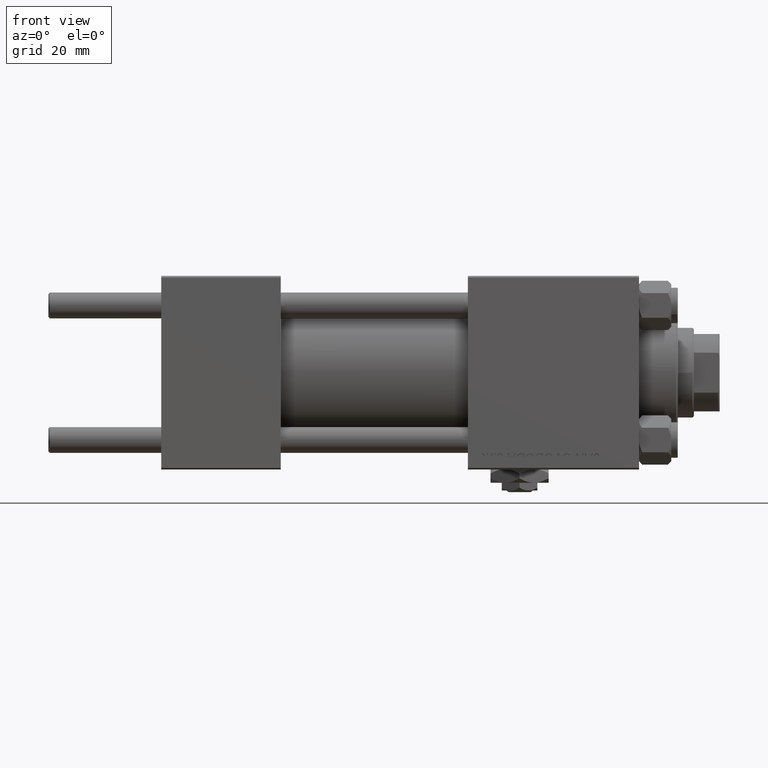
[diagram: clean part render]
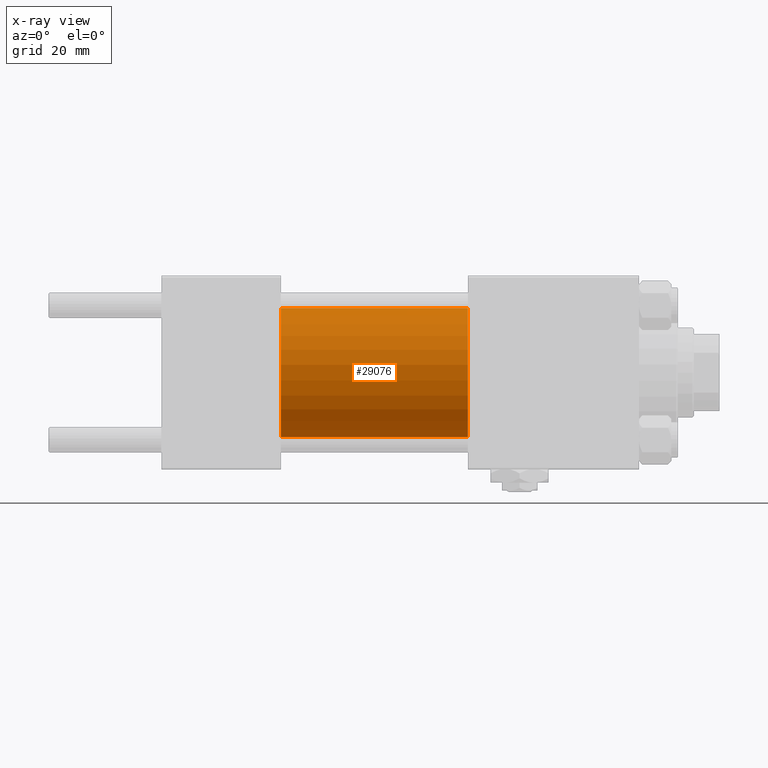
[diagram: x-ray — body ghosted, one internal face saturated and labeled with its STEP entity id]
A machine part, front view, then the same camera in x-ray: the body is ghosted and one INTERNAL B-rep face — a face not visible from any outside direction — is saturated and labeled: STEP entity #29076.
In plain terms, the highlighted cylindrical surface (partial cylindrical patch) has radius 20 mm, axis along (-1, -0, -0).
Its self-contained STEP definition (entity closure, byte-faithful):
#1103 = ORIENTED_EDGE ( 'NONE', *, *, #39062, .F. ) ;
#1464 = ORIENTED_EDGE ( 'NONE', *, *, #37279, .T. ) ;
#2522 = DIRECTION ( 'NONE',  ( 0.000000000000000000, 0.000000000000000000, -1.000000000000000000 ) ) ;
#3552 = LINE ( 'NONE', #24145, #45489 ) ;
#6769 = CARTESIAN_POINT ( 'NONE',  ( 95.00000000000000000, 0.000000000000000000, 0.000000000000000000 ) ) ;
#11180 = VECTOR ( 'NONE', #38330, 1000.000000000000000 ) ;
#12902 = AXIS2_PLACEMENT_3D ( 'NONE', #29851, #17870, #17102 ) ;
#13964 = CYLINDRICAL_SURFACE ( 'NONE', #12902, 20.00000000000000000 ) ;
#14021 = ORIENTED_EDGE ( 'NONE', *, *, #43408, .T. ) ;
#14890 = AXIS2_PLACEMENT_3D ( 'NONE', #6769, #34679, #26862 ) ;
#16275 = EDGE_CURVE ( 'NONE', #35993, #33584, #46162, .T. ) ;
#16471 = VERTEX_POINT ( 'NONE', #28579 ) ;
#17102 = DIRECTION ( 'NONE',  ( 0.000000000000000000, 0.000000000000000000, 1.000000000000000000 ) ) ;
#17870 = DIRECTION ( 'NONE',  ( -1.000000000000000000, -0.000000000000000000, -0.000000000000000000 ) ) ;
#18948 = DIRECTION ( 'NONE',  ( 1.000000000000000000, 0.000000000000000000, 0.000000000000000000 ) ) ;
#23001 = EDGE_LOOP ( 'NONE', ( #14021, #1464, #1103, #38470 ) ) ;
#24145 = CARTESIAN_POINT ( 'NONE',  ( 95.00000000000000000, 2.449293598294706119E-15, -20.00000000000000000 ) ) ;
#26083 = CARTESIAN_POINT ( 'NONE',  ( 95.00000000000000000, 0.000000000000000000, 20.00000000000000000 ) ) ;
#26862 = DIRECTION ( 'NONE',  ( 0.000000000000000000, 0.000000000000000000, -1.000000000000000000 ) ) ;
#28053 = DIRECTION ( 'NONE',  ( -1.000000000000000000, -0.000000000000000000, -0.000000000000000000 ) ) ;
#28579 = CARTESIAN_POINT ( 'NONE',  ( 37.00000000000000000, 2.449293598294706119E-15, -20.00000000000000000 ) ) ;
#29076 = ADVANCED_FACE ( 'NONE', ( #37945 ), #13964, .F. ) ;
#29851 = CARTESIAN_POINT ( 'NONE',  ( 95.00000000000000000, 0.000000000000000000, 0.000000000000000000 ) ) ;
#30416 = CARTESIAN_POINT ( 'NONE',  ( 37.00000000000000000, 0.000000000000000000, 20.00000000000000000 ) ) ;
#32016 = CARTESIAN_POINT ( 'NONE',  ( 95.00000000000000000, 0.000000000000000000, 20.00000000000000000 ) ) ;
#33584 = VERTEX_POINT ( 'NONE', #30416 ) ;
#34679 = DIRECTION ( 'NONE',  ( 1.000000000000000000, 0.000000000000000000, 0.000000000000000000 ) ) ;
#35993 = VERTEX_POINT ( 'NONE', #32016 ) ;
#36554 = CIRCLE ( 'NONE', #14890, 20.00000000000000000 ) ;
#37279 = EDGE_CURVE ( 'NONE', #38111, #16471, #3552, .T. ) ;
#37945 = FACE_OUTER_BOUND ( 'NONE', #23001, .T. ) ;
#38111 = VERTEX_POINT ( 'NONE', #38784 ) ;
#38252 = CARTESIAN_POINT ( 'NONE',  ( 37.00000000000000000, 0.000000000000000000, 0.000000000000000000 ) ) ;
#38330 = DIRECTION ( 'NONE',  ( -1.000000000000000000, -0.000000000000000000, -0.000000000000000000 ) ) ;
#38470 = ORIENTED_EDGE ( 'NONE', *, *, #16275, .F. ) ;
#38784 = CARTESIAN_POINT ( 'NONE',  ( 95.00000000000000000, 2.449293598294706119E-15, -20.00000000000000000 ) ) ;
#39062 = EDGE_CURVE ( 'NONE', #33584, #16471, #49726, .T. ) ;
#43408 = EDGE_CURVE ( 'NONE', #35993, #38111, #36554, .T. ) ;
#43920 = AXIS2_PLACEMENT_3D ( 'NONE', #38252, #18948, #2522 ) ;
#45489 = VECTOR ( 'NONE', #28053, 1000.000000000000000 ) ;
#46162 = LINE ( 'NONE', #26083, #11180 ) ;
#49726 = CIRCLE ( 'NONE', #43920, 20.00000000000000000 ) ;